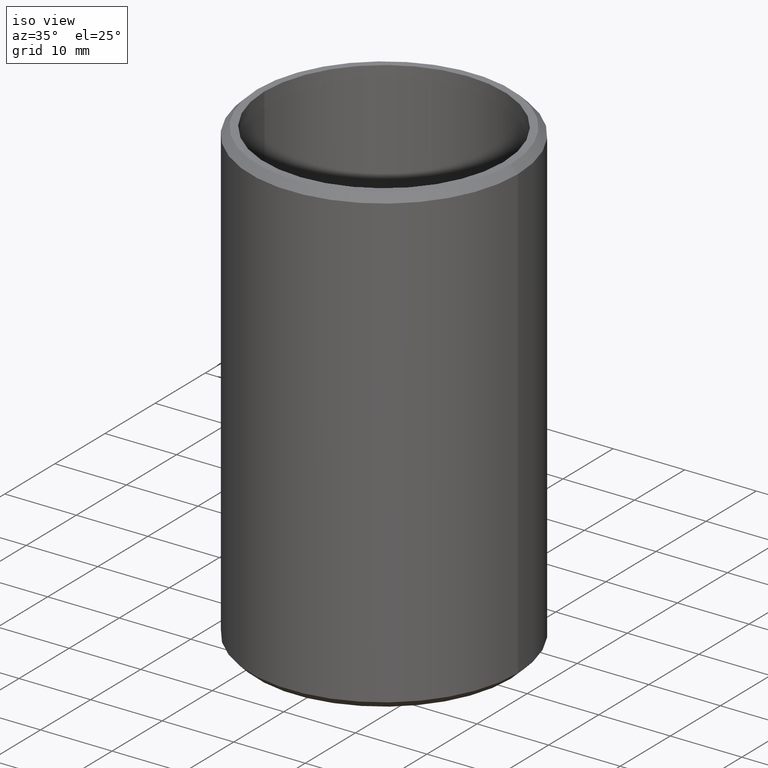
[diagram: clean part render]
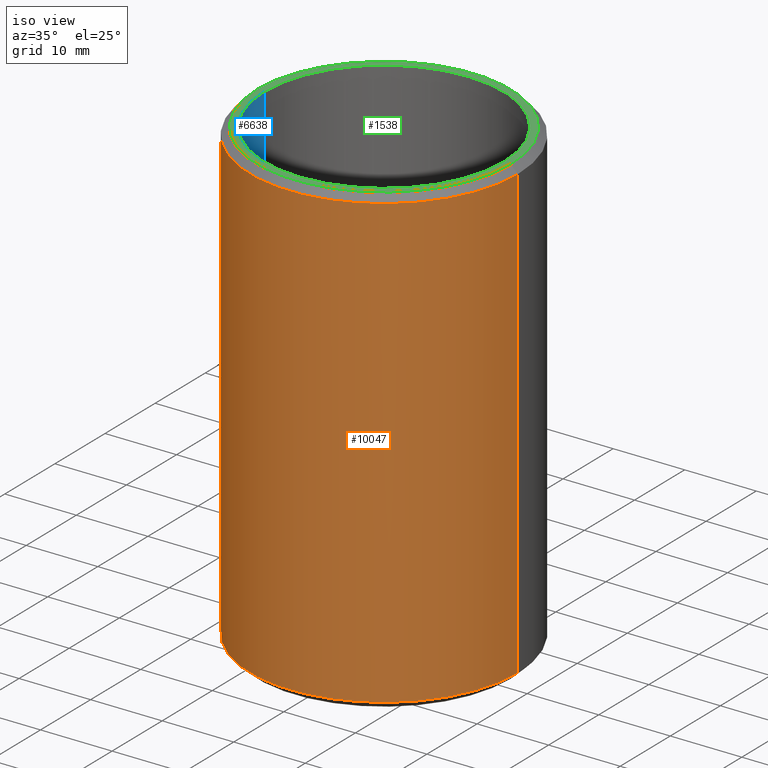
[diagram: same view with three faces highlighted in distinct colors, each labeled with its STEP entity id]
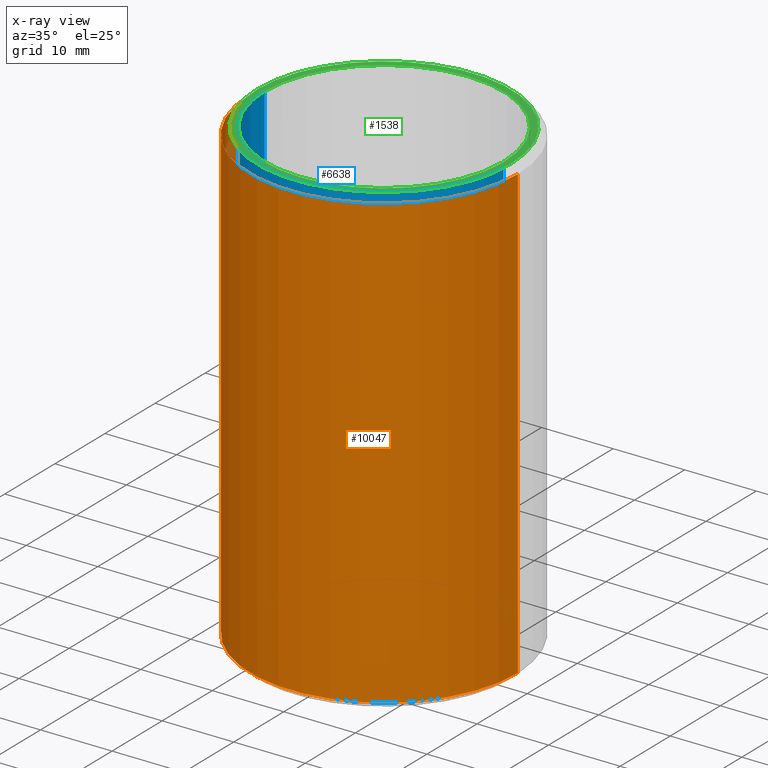
[diagram: x-ray of the same camera — body ghosted, the three highlighted faces saturated]
A machine part, iso view with three faces highlighted in distinct colors.
The next image is the same camera in x-ray (body ghosted, the three faces saturated) — at least one of them is partly hidden behind the body in this view.
Their STEP definitions:

[orange] entity #10047 — the highlighted cylindrical surface (partial cylindrical patch) has radius 18.7 mm, axis along (-0, -0, -1).
#18 = VERTEX_POINT ( 'NONE', #12883 ) ;
#245 = DIRECTION ( 'NONE',  ( 0.0000000000000000000, 0.0000000000000000000, -1.000000000000000000 ) ) ;
#316 = CARTESIAN_POINT ( 'NONE',  ( 0.0000000000000000000, 0.0000000000000000000, -31.49999999999998600 ) ) ;
#332 = DIRECTION ( 'NONE',  ( -1.000000000000000000, 0.0000000000000000000, 0.0000000000000000000 ) ) ;
#602 = FACE_OUTER_BOUND ( 'NONE', #7610, .T. ) ;
#1141 = VERTEX_POINT ( 'NONE', #10345 ) ;
#1582 = ORIENTED_EDGE ( 'NONE', *, *, #10571, .T. ) ;
#2938 = VECTOR ( 'NONE', #5825, 1000.000000000000000 ) ;
#3451 = VECTOR ( 'NONE', #11188, 1000.000000000000000 ) ;
#3551 = ORIENTED_EDGE ( 'NONE', *, *, #10774, .T. ) ;
#4277 = DIRECTION ( 'NONE',  ( -0.0000000000000000000, -0.0000000000000000000, -1.000000000000000000 ) ) ;
#4887 = CIRCLE ( 'NONE', #10219, 18.69999999999999900 ) ;
#5273 = CARTESIAN_POINT ( 'NONE',  ( 0.0000000000000000000, 0.0000000000000000000, 32.50000000000000000 ) ) ;
#5306 = EDGE_CURVE ( 'NONE', #12591, #1141, #5693, .T. ) ;
#5693 = CIRCLE ( 'NONE', #6255, 18.69999999999999900 ) ;
#5825 = DIRECTION ( 'NONE',  ( -0.0000000000000000000, -0.0000000000000000000, -1.000000000000000000 ) ) ;
#6255 = AXIS2_PLACEMENT_3D ( 'NONE', #12336, #245, #7360 ) ;
#6359 = LINE ( 'NONE', #8120, #3451 ) ;
#7311 = AXIS2_PLACEMENT_3D ( 'NONE', #5273, #4277, #332 ) ;
#7360 = DIRECTION ( 'NONE',  ( 1.000000000000000000, 0.0000000000000000000, 0.0000000000000000000 ) ) ;
#7418 = DIRECTION ( 'NONE',  ( 1.000000000000000000, 0.0000000000000000000, 0.0000000000000000000 ) ) ;
#7515 = DIRECTION ( 'NONE',  ( -0.0000000000000000000, -0.0000000000000000000, 1.000000000000000000 ) ) ;
#7610 = EDGE_LOOP ( 'NONE', ( #11947, #11634, #3551, #1582 ) ) ;
#8120 = CARTESIAN_POINT ( 'NONE',  ( 18.69999999999999900, 2.290089514405550500E-015, 32.50000000000000000 ) ) ;
#8992 = LINE ( 'NONE', #12800, #2938 ) ;
#9474 = CYLINDRICAL_SURFACE ( 'NONE', #7311, 18.69999999999999900 ) ;
#9706 = EDGE_CURVE ( 'NONE', #12591, #10919, #6359, .T. ) ;
#10047 = ADVANCED_FACE ( 'NONE', ( #602 ), #9474, .T. ) ;
#10219 = AXIS2_PLACEMENT_3D ( 'NONE', #316, #7515, #7418 ) ;
#10345 = CARTESIAN_POINT ( 'NONE',  ( -18.69999999999999900, 0.0000000000000000000, 31.50000000000000700 ) ) ;
#10372 = CARTESIAN_POINT ( 'NONE',  ( 18.69999999999999900, 2.290089514405550500E-015, -31.49999999999998600 ) ) ;
#10571 = EDGE_CURVE ( 'NONE', #18, #10919, #4887, .T. ) ;
#10774 = EDGE_CURVE ( 'NONE', #1141, #18, #8992, .T. ) ;
#10919 = VERTEX_POINT ( 'NONE', #10372 ) ;
#11188 = DIRECTION ( 'NONE',  ( -0.0000000000000000000, -0.0000000000000000000, -1.000000000000000000 ) ) ;
#11634 = ORIENTED_EDGE ( 'NONE', *, *, #5306, .T. ) ;
#11947 = ORIENTED_EDGE ( 'NONE', *, *, #9706, .F. ) ;
#12210 = CARTESIAN_POINT ( 'NONE',  ( 18.69999999999999900, 2.290089514405550500E-015, 31.50000000000000700 ) ) ;
#12336 = CARTESIAN_POINT ( 'NONE',  ( 0.0000000000000000000, 0.0000000000000000000, 31.50000000000000700 ) ) ;
#12591 = VERTEX_POINT ( 'NONE', #12210 ) ;
#12800 = CARTESIAN_POINT ( 'NONE',  ( -18.69999999999999900, 0.0000000000000000000, 32.50000000000000000 ) ) ;
#12883 = CARTESIAN_POINT ( 'NONE',  ( -18.69999999999999900, 0.0000000000000000000, -31.49999999999998600 ) ) ;

[blue] entity #6638 — the highlighted cylindrical surface (partial cylindrical patch) has radius 16.7 mm, axis along (-0, -0, -1).
#41 = B_SPLINE_CURVE_WITH_KNOTS ( 'NONE', 3,
 ( #10165, #9215, #11312, #3126 ),
 .UNSPECIFIED., .F., .F.,
 ( 4, 4 ),
 ( 0.0000000000000000000, 0.0001645194101132995600 ),
 .UNSPECIFIED. ) ;
#67 = DIRECTION ( 'NONE',  ( -0.0000000000000000000, -0.0000000000000000000, -1.000000000000000000 ) ) ;
#92 = ORIENTED_EDGE ( 'NONE', *, *, #7108, .F. ) ;
#96 = EDGE_CURVE ( 'NONE', #5989, #12878, #4911, .T. ) ;
#118 = VERTEX_POINT ( 'NONE', #9037 ) ;
#126 = VECTOR ( 'NONE', #8437, 1000.000000000000000 ) ;
#134 = B_SPLINE_CURVE_WITH_KNOTS ( 'NONE', 3,
 ( #10264, #10487, #5448, #4458 ),
 .UNSPECIFIED., .F., .F.,
 ( 4, 4 ),
 ( 0.0003122497290092668100, 0.0004517219821183796000 ),
 .UNSPECIFIED. ) ;
#250 = CARTESIAN_POINT ( 'NONE',  ( -16.69999238338286300, -0.01597987844934647300, 8.886734882556011100 ) ) ;
#292 = VERTEX_POINT ( 'NONE', #6363 ) ;
#294 = CARTESIAN_POINT ( 'NONE',  ( -16.69999999999999900, -1.551054894538230000E-016, 32.50000000000000000 ) ) ;
#318 = ORIENTED_EDGE ( 'NONE', *, *, #8656, .T. ) ;
#346 = EDGE_CURVE ( 'NONE', #118, #5563, #705, .T. ) ;
#359 = EDGE_CURVE ( 'NONE', #4543, #5696, #11160, .T. ) ;
#387 = EDGE_CURVE ( 'NONE', #11180, #8723, #7563, .T. ) ;
#430 = VERTEX_POINT ( 'NONE', #3484 ) ;
#474 = DIRECTION ( 'NONE',  ( -0.0000000000000000000, -0.0000000000000000000, -1.000000000000000000 ) ) ;
#512 = CARTESIAN_POINT ( 'NONE',  ( -16.69996672781217800, -0.03334105922174647500, 0.4567360529736959100 ) ) ;
#513 = VERTEX_POINT ( 'NONE', #8976 ) ;
#586 = VECTOR ( 'NONE', #3918, 1000.000000000000000 ) ;
#590 = LINE ( 'NONE', #7069, #11488 ) ;
#615 = B_SPLINE_CURVE_WITH_KNOTS ( 'NONE', 3,
 ( #12320, #12401, #6328, #7343 ),
 .UNSPECIFIED., .F., .F.,
 ( 4, 4 ),
 ( 0.0000000000000000000, 0.0001354148056496920800 ),
 .UNSPECIFIED. ) ;
#632 = CARTESIAN_POINT ( 'NONE',  ( -16.69999999999999900, -1.551054894538230000E-016, 6.572182158119662900 ) ) ;
#671 = CARTESIAN_POINT ( 'NONE',  ( -16.69999138749641800, -0.01696047008547024000, 8.935252654246800900 ) ) ;
#675 = ORIENTED_EDGE ( 'NONE', *, *, #3011, .F. ) ;
#693 = AXIS2_PLACEMENT_3D ( 'NONE', #12922, #1822, #12302 ) ;
#705 = LINE ( 'NONE', #9336, #5013 ) ;
#714 = LINE ( 'NONE', #11291, #7731 ) ;
#721 = VECTOR ( 'NONE', #3183, 1000.000000000000000 ) ;
#737 = LINE ( 'NONE', #9992, #586 ) ;
#756 = ORIENTED_EDGE ( 'NONE', *, *, #10816, .F. ) ;
#757 = CARTESIAN_POINT ( 'NONE',  ( -16.69999999999999900, -1.551054894538230000E-016, 3.994190705128205700 ) ) ;
#773 = VERTEX_POINT ( 'NONE', #5765 ) ;
#776 = VERTEX_POINT ( 'NONE', #7800 ) ;
#819 = DIRECTION ( 'NONE',  ( -0.0000000000000000000, -0.0000000000000000000, -1.000000000000000000 ) ) ;
#830 = CARTESIAN_POINT ( 'NONE',  ( -16.69999999999999900, -1.551054894538230000E-016, 1.755408653846157700 ) ) ;
#839 = CARTESIAN_POINT ( 'NONE',  ( -16.69999999999999200, -5.251720740006909600E-013, 0.6883463607472526400 ) ) ;
#841 = CARTESIAN_POINT ( 'NONE',  ( -16.69996554995901800, -0.03392094017094033500, -9.859068259214742700 ) ) ;
#868 = EDGE_LOOP ( 'NONE', ( #318, #4979, #92, #6316, #6533, #6392, #5740, #3635, #1493, #4551, #6024, #12827, #2689, #675, #9488, #8232, #6206, #10031, #3536, #5041, #2857, #12301, #756, #8917, #8153, #6561, #4185, #4205, #8773, #11227, #6688, #11162, #12661, #8004, #3615, #12808, #5134, #10126, #10147, #10246, #12358, #3521, #8428, #11213, #8945, #1210, #7061, #10735, #942, #5543, #4272, #3722, #2583, #8832, #12991, #3927, #11189, #2766, #8421, #8739 ) ) ;
#899 = CARTESIAN_POINT ( 'NONE',  ( -16.70000000000000600, -4.715580648130460100E-014, 7.219195855034024100 ) ) ;
#942 = ORIENTED_EDGE ( 'NONE', *, *, #8340, .T. ) ;
#950 = CARTESIAN_POINT ( 'NONE',  ( -16.69999999999999900, -1.551054894538230000E-016, -1.501001602564098400 ) ) ;
#983 = CARTESIAN_POINT ( 'NONE',  ( -16.69999249357679400, -0.01587137687383451800, 7.310394557709775800 ) ) ;
#985 = CARTESIAN_POINT ( 'NONE',  ( -16.69999999999999900, -1.551054894538230000E-016, 5.910723824786329800 ) ) ;
#1007 = DIRECTION ( 'NONE',  ( 0.0000000000000000000, 0.0000000000000000000, 1.000000000000000000 ) ) ;
#1101 = CARTESIAN_POINT ( 'NONE',  ( -16.69999999999999900, 0.0000000000000000000, 32.50000000000000000 ) ) ;
#1111 = DIRECTION ( 'NONE',  ( -0.0000000000000000000, -0.0000000000000000000, -1.000000000000000000 ) ) ;
#1210 = ORIENTED_EDGE ( 'NONE', *, *, #8390, .F. ) ;
#1212 = LINE ( 'NONE', #2143, #126 ) ;
#1222 = LINE ( 'NONE', #10789, #8395 ) ;
#1270 = CARTESIAN_POINT ( 'NONE',  ( -16.69999999999999900, 0.0000000000000000000, 32.50000000000000000 ) ) ;
#1288 = CARTESIAN_POINT ( 'NONE',  ( -16.69999999999999900, -1.551054894538230000E-016, 32.50000000000000000 ) ) ;
#1295 = EDGE_CURVE ( 'NONE', #12831, #6544, #11367, .T. ) ;
#1332 = VERTEX_POINT ( 'NONE', #9682 ) ;
#1360 = VECTOR ( 'NONE', #11431, 1000.000000000000000 ) ;
#1363 = LINE ( 'NONE', #7245, #6497 ) ;
#1369 = DIRECTION ( 'NONE',  ( 0.0000000000000000000, 0.0000000000000000000, 1.000000000000000000 ) ) ;
#1385 = DIRECTION ( 'NONE',  ( 0.0000000000000000000, 0.0000000000000000000, 1.000000000000000000 ) ) ;
#1392 = LINE ( 'NONE', #12510, #12935 ) ;
#1398 = VERTEX_POINT ( 'NONE', #5768 ) ;
#1440 = EDGE_CURVE ( 'NONE', #2749, #10013, #2504, .T. ) ;
#1489 = DIRECTION ( 'NONE',  ( -0.0000000000000000000, -0.0000000000000000000, -1.000000000000000000 ) ) ;
#1490 = EDGE_CURVE ( 'NONE', #4121, #10705, #12885, .T. ) ;
#1493 = ORIENTED_EDGE ( 'NONE', *, *, #346, .F. ) ;
#1532 = EDGE_CURVE ( 'NONE', #7859, #8769, #6971, .T. ) ;
#1546 = CARTESIAN_POINT ( 'NONE',  ( -16.70000000000000600, -6.748332666598692200E-013, -7.074379740093164100 ) ) ;
#1555 = LINE ( 'NONE', #9325, #11710 ) ;
#1558 = EDGE_CURVE ( 'NONE', #1852, #2134, #12758, .T. ) ;
#1559 = VERTEX_POINT ( 'NONE', #5900 ) ;
#1560 = VERTEX_POINT ( 'NONE', #12027 ) ;
#1632 = DIRECTION ( 'NONE',  ( 0.0000000000000000000, 0.0000000000000000000, 1.000000000000000000 ) ) ;
#1671 = CARTESIAN_POINT ( 'NONE',  ( -16.69996554995901800, -0.03392094017094032800, -7.234965528178420000 ) ) ;
#1673 = VECTOR ( 'NONE', #2622, 1000.000000000000000 ) ;
#1675 = CARTESIAN_POINT ( 'NONE',  ( -16.69999999999999900, 0.0000000000000000000, 32.50000000000000000 ) ) ;
#1692 = CARTESIAN_POINT ( 'NONE',  ( -16.69999999999999900, -1.551054894538230000E-016, 3.604099893162394400 ) ) ;
#1700 = LINE ( 'NONE', #7397, #9332 ) ;
#1715 = LINE ( 'NONE', #1288, #11079 ) ;
#1782 = DIRECTION ( 'NONE',  ( -0.0000000000000000000, -0.0000000000000000000, -1.000000000000000000 ) ) ;
#1806 = VECTOR ( 'NONE', #1385, 1000.000000000000000 ) ;
#1822 = DIRECTION ( 'NONE',  ( -0.0000000000000000000, -0.0000000000000000000, -1.000000000000000000 ) ) ;
#1834 = CARTESIAN_POINT ( 'NONE',  ( -16.69999999999999900, 0.0000000000000000000, 32.50000000000000000 ) ) ;
#1852 = VERTEX_POINT ( 'NONE', #11478 ) ;
#1983 = CARTESIAN_POINT ( 'NONE',  ( -16.69999999999999900, -1.551054894538230000E-016, 32.50000000000000000 ) ) ;
#1994 = CARTESIAN_POINT ( 'NONE',  ( -16.69999999999999900, 0.0000000000000000000, 32.50000000000000000 ) ) ;
#2015 = DIRECTION ( 'NONE',  ( 1.000000000000000000, 0.0000000000000000000, 0.0000000000000000000 ) ) ;
#2041 = DIRECTION ( 'NONE',  ( 0.0000000000000000000, 0.0000000000000000000, 1.000000000000000000 ) ) ;
#2134 = VERTEX_POINT ( 'NONE', #10618 ) ;
#2143 = CARTESIAN_POINT ( 'NONE',  ( -16.69999999999999900, 0.0000000000000000000, 32.50000000000000000 ) ) ;
#2200 = CARTESIAN_POINT ( 'NONE',  ( -16.70000000000000600, -6.748332666598692200E-013, -7.074379740093164100 ) ) ;
#2226 = CARTESIAN_POINT ( 'NONE',  ( -16.69999999999999900, 0.0000000000000000000, 32.50000000000000000 ) ) ;
#2236 = EDGE_CURVE ( 'NONE', #8953, #3402, #11544, .T. ) ;
#2277 = VECTOR ( 'NONE', #4487, 1000.000000000000000 ) ;
#2315 = CARTESIAN_POINT ( 'NONE',  ( -16.69996719821758200, -0.03310946911146010800, -0.5743638114719853400 ) ) ;
#2323 = VECTOR ( 'NONE', #1111, 1000.000000000000000 ) ;
#2345 = VERTEX_POINT ( 'NONE', #10719 ) ;
#2347 = CARTESIAN_POINT ( 'NONE',  ( -16.69999999999999900, -1.551054894538230000E-016, 8.098624465811967700 ) ) ;
#2466 = VERTEX_POINT ( 'NONE', #632 ) ;
#2478 = AXIS2_PLACEMENT_3D ( 'NONE', #11978, #1007, #2015 ) ;
#2497 = LINE ( 'NONE', #1101, #13098 ) ;
#2504 = LINE ( 'NONE', #1675, #6028 ) ;
#2520 = EDGE_CURVE ( 'NONE', #1559, #6508, #4584, .T. ) ;
#2537 = LINE ( 'NONE', #7802, #12173 ) ;
#2572 = CARTESIAN_POINT ( 'NONE',  ( 16.69999999999999900, 2.045160154576079800E-015, 32.50000000000000000 ) ) ;
#2583 = ORIENTED_EDGE ( 'NONE', *, *, #1440, .F. ) ;
#2611 = EDGE_CURVE ( 'NONE', #12147, #11204, #1222, .T. ) ;
#2622 = DIRECTION ( 'NONE',  ( -0.0000000000000000000, -0.0000000000000000000, -1.000000000000000000 ) ) ;
#2633 = EDGE_CURVE ( 'NONE', #12147, #4121, #12560, .T. ) ;
#2647 = DIRECTION ( 'NONE',  ( 0.0000000000000000000, 0.0000000000000000000, 1.000000000000000000 ) ) ;
#2663 = CARTESIAN_POINT ( 'NONE',  ( -16.69999999999999900, -1.551054894538230000E-016, -8.420873397435892500 ) ) ;
#2680 = EDGE_CURVE ( 'NONE', #5840, #1332, #5707, .T. ) ;
#2689 = ORIENTED_EDGE ( 'NONE', *, *, #6040, .T. ) ;
#2747 = CARTESIAN_POINT ( 'NONE',  ( -16.69999252396562600, -0.01584145475486908900, 8.983188331401498400 ) ) ;
#2749 = VERTEX_POINT ( 'NONE', #2347 ) ;
#2766 = ORIENTED_EDGE ( 'NONE', *, *, #3409, .F. ) ;
#2857 = ORIENTED_EDGE ( 'NONE', *, *, #9733, .F. ) ;
#2871 = CARTESIAN_POINT ( 'NONE',  ( -16.69999999999999900, -1.551054894538230000E-016, -3.875467414529910800 ) ) ;
#2901 = CARTESIAN_POINT ( 'NONE',  ( -16.69999999999999900, -1.551054894538230000E-016, 2.484708867521372900 ) ) ;
#2943 = LINE ( 'NONE', #1270, #4247 ) ;
#2972 = CARTESIAN_POINT ( 'NONE',  ( -16.69999999999999200, -6.752912997260969800E-013, -2.393289996503417800 ) ) ;
#3011 = EDGE_CURVE ( 'NONE', #3712, #8786, #1212, .T. ) ;
#3016 = EDGE_CURVE ( 'NONE', #2749, #430, #12605, .T. ) ;
#3084 = LINE ( 'NONE', #8521, #1806 ) ;
#3096 = CARTESIAN_POINT ( 'NONE',  ( -16.69999999999999900, -1.551054894538230000E-016, 32.50000000000000000 ) ) ;
#3126 = CARTESIAN_POINT ( 'NONE',  ( -16.69999999999999200, -6.752912997260969800E-013, -2.393289996503417800 ) ) ;
#3183 = DIRECTION ( 'NONE',  ( 0.0000000000000000000, 0.0000000000000000000, 1.000000000000000000 ) ) ;
#3201 = VERTEX_POINT ( 'NONE', #4741 ) ;
#3290 = VERTEX_POINT ( 'NONE', #5141 ) ;
#3324 = LINE ( 'NONE', #12080, #7799 ) ;
#3344 = CARTESIAN_POINT ( 'NONE',  ( -16.69999999999999900, -1.551054894538230000E-016, 10.23564369658119800 ) ) ;
#3350 = VERTEX_POINT ( 'NONE', #830 ) ;
#3402 = VERTEX_POINT ( 'NONE', #2901 ) ;
#3409 = EDGE_CURVE ( 'NONE', #6137, #3290, #2943, .T. ) ;
#3454 = EDGE_CURVE ( 'NONE', #1560, #8769, #8997, .T. ) ;
#3468 = CARTESIAN_POINT ( 'NONE',  ( 16.69999999999999900, 2.045160154576079800E-015, -32.50000000000000000 ) ) ;
#3484 = CARTESIAN_POINT ( 'NONE',  ( -16.69999999999999900, -1.551054894538230000E-016, 8.217347756410257300 ) ) ;
#3521 = ORIENTED_EDGE ( 'NONE', *, *, #10485, .F. ) ;
#3536 = ORIENTED_EDGE ( 'NONE', *, *, #12418, .T. ) ;
#3555 = CARTESIAN_POINT ( 'NONE',  ( -16.69999999999999900, -5.433716356636336700E-016, -7.396388602553878800 ) ) ;
#3615 = ORIENTED_EDGE ( 'NONE', *, *, #11872, .F. ) ;
#3635 = ORIENTED_EDGE ( 'NONE', *, *, #4564, .T. ) ;
#3650 = EDGE_CURVE ( 'NONE', #3712, #5696, #10867, .T. ) ;
#3696 = B_SPLINE_CURVE_WITH_KNOTS ( 'NONE', 3,
 ( #5130, #12199, #8400, #5260 ),
 .UNSPECIFIED., .F., .F.,
 ( 4, 4 ),
 ( 0.0000000000000000000, 0.0001645194101132999400 ),
 .UNSPECIFIED. ) ;
#3711 = CARTESIAN_POINT ( 'NONE',  ( -16.69999999999999900, -0.02342405405019061900, -9.986808934908646400 ) ) ;
#3712 = VERTEX_POINT ( 'NONE', #4122 ) ;
#3722 = ORIENTED_EDGE ( 'NONE', *, *, #5780, .T. ) ;
#3760 = VECTOR ( 'NONE', #9381, 1000.000000000000000 ) ;
#3790 = VERTEX_POINT ( 'NONE', #12663 ) ;
#3794 = CARTESIAN_POINT ( 'NONE',  ( -16.69996554995901800, -0.03392094017094032800, -2.553875784588672400 ) ) ;
#3829 = DIRECTION ( 'NONE',  ( 0.0000000000000000000, 0.0000000000000000000, 1.000000000000000000 ) ) ;
#3833 = CARTESIAN_POINT ( 'NONE',  ( -16.70000000000000600, 5.572377238288641700E-012, 4.523516103639996000 ) ) ;
#3834 = CARTESIAN_POINT ( 'NONE',  ( -16.69996787043194800, -0.03277852437029723400, 0.5784097059820391100 ) ) ;
#3903 = CARTESIAN_POINT ( 'NONE',  ( -16.69999999999999900, 0.0000000000000000000, -32.50000000000000000 ) ) ;
#3918 = DIRECTION ( 'NONE',  ( -0.0000000000000000000, -0.0000000000000000000, -1.000000000000000000 ) ) ;
#3919 = CARTESIAN_POINT ( 'NONE',  ( -16.69999999999999200, -0.02343688019447004100, 0.6360032582614759700 ) ) ;
#3927 = ORIENTED_EDGE ( 'NONE', *, *, #2520, .T. ) ;
#3929 = B_SPLINE_CURVE_WITH_KNOTS ( 'NONE', 3,
 ( #7442, #8594, #512, #7658 ),
 .UNSPECIFIED., .F., .F.,
 ( 4, 4 ),
 ( 0.0005409006475431795300, 0.0007297867420576336100 ),
 .UNSPECIFIED. ) ;
#3931 = EDGE_CURVE ( 'NONE', #1559, #430, #8203, .T. ) ;
#3947 = CARTESIAN_POINT ( 'NONE',  ( -16.69999999999999900, -0.02343688019447230700, -9.743804434046222000 ) ) ;
#3950 = EDGE_CURVE ( 'NONE', #1852, #7158, #5408, .T. ) ;
#4121 = VERTEX_POINT ( 'NONE', #7275 ) ;
#4122 = CARTESIAN_POINT ( 'NONE',  ( -16.69999999999999900, -1.551054894538230000E-016, -5.656316773504269000 ) ) ;
#4160 = DIRECTION ( 'NONE',  ( -0.0000000000000000000, -0.0000000000000000000, -1.000000000000000000 ) ) ;
#4185 = ORIENTED_EDGE ( 'NONE', *, *, #11440, .T. ) ;
#4205 = ORIENTED_EDGE ( 'NONE', *, *, #96, .T. ) ;
#4209 = EDGE_CURVE ( 'NONE', #118, #11067, #7356, .T. ) ;
#4247 = VECTOR ( 'NONE', #7432, 1000.000000000000000 ) ;
#4272 = ORIENTED_EDGE ( 'NONE', *, *, #3950, .T. ) ;
#4292 = EDGE_CURVE ( 'NONE', #11060, #9166, #9471, .T. ) ;
#4306 = CARTESIAN_POINT ( 'NONE',  ( -16.69999999999999900, -1.551054894538230000E-016, -1.619724893162387300 ) ) ;
#4341 = CARTESIAN_POINT ( 'NONE',  ( -16.70000000000000600, 5.572377238288641700E-012, 4.523516103639996000 ) ) ;
#4352 = VERTEX_POINT ( 'NONE', #8836 ) ;
#4366 = EDGE_CURVE ( 'NONE', #11067, #8723, #4933, .T. ) ;
#4383 = DIRECTION ( 'NONE',  ( 1.000000000000000000, 0.0000000000000000000, 0.0000000000000000000 ) ) ;
#4384 = CARTESIAN_POINT ( 'NONE',  ( -16.69999999999999200, -1.057833904488579900E-013, 8.791911933995812900 ) ) ;
#4399 = LINE ( 'NONE', #10351, #721 ) ;
#4434 = VECTOR ( 'NONE', #474, 1000.000000000000000 ) ;
#4458 = CARTESIAN_POINT ( 'NONE',  ( -16.69999138749641800, -0.01696047008547024000, 4.389051649305556200 ) ) ;
#4476 = LINE ( 'NONE', #10930, #11575 ) ;
#4487 = DIRECTION ( 'NONE',  ( -0.0000000000000000000, -0.0000000000000000000, -1.000000000000000000 ) ) ;
#4543 = VERTEX_POINT ( 'NONE', #2871 ) ;
#4551 = ORIENTED_EDGE ( 'NONE', *, *, #4209, .T. ) ;
#4564 = EDGE_CURVE ( 'NONE', #773, #5563, #4399, .T. ) ;
#4584 = B_SPLINE_CURVE_WITH_KNOTS ( 'NONE', 3,
 ( #4384, #8374, #250, #10241 ),
 .UNSPECIFIED., .F., .F.,
 ( 4, 4 ),
 ( 0.0004003679278568019100, 0.0005426838302378741900 ),
 .UNSPECIFIED. ) ;
#4669 = EDGE_CURVE ( 'NONE', #8048, #8156, #41, .T. ) ;
#4741 = CARTESIAN_POINT ( 'NONE',  ( -16.69999999999999900, -1.551054894538230000E-016, -3.756744123931618200 ) ) ;
#4784 = CARTESIAN_POINT ( 'NONE',  ( -16.70000000000001000, -0.02309534509019173600, -7.124177465865152200 ) ) ;
#4786 = DIRECTION ( 'NONE',  ( 0.0000000000000000000, 0.0000000000000000000, 1.000000000000000000 ) ) ;
#4800 = CARTESIAN_POINT ( 'NONE',  ( -16.69999999999999900, -1.551054894538230000E-016, 2.756076388888889300 ) ) ;
#4813 = CARTESIAN_POINT ( 'NONE',  ( -16.69999999999999900, -1.551054894538230000E-016, 32.50000000000000000 ) ) ;
#4832 = DIRECTION ( 'NONE',  ( -0.0000000000000000000, -0.0000000000000000000, -1.000000000000000000 ) ) ;
#4904 = VECTOR ( 'NONE', #4951, 1000.000000000000000 ) ;
#4911 = B_SPLINE_CURVE_WITH_KNOTS ( 'NONE', 3,
 ( #9897, #3834, #3919, #11917 ),
 .UNSPECIFIED., .F., .F.,
 ( 4, 4 ),
 ( 0.0000000000000000000, 0.0001713056973771774000 ),
 .UNSPECIFIED. ) ;
#4933 = B_SPLINE_CURVE_WITH_KNOTS ( 'NONE', 3,
 ( #1671, #10796, #4784, #1546 ),
 .UNSPECIFIED., .F., .F.,
 ( 4, 4 ),
 ( 0.0000000000000000000, 0.0001645194101133013000 ),
 .UNSPECIFIED. ) ;
#4951 = DIRECTION ( 'NONE',  ( -0.0000000000000000000, -0.0000000000000000000, -1.000000000000000000 ) ) ;
#4979 = ORIENTED_EDGE ( 'NONE', *, *, #11494, .T. ) ;
#5000 = CARTESIAN_POINT ( 'NONE',  ( -16.69999999999999900, -1.551054894538230000E-016, -6.521300747863244300 ) ) ;
#5013 = VECTOR ( 'NONE', #7372, 1000.000000000000000 ) ;
#5041 = ORIENTED_EDGE ( 'NONE', *, *, #4669, .T. ) ;
#5050 = VECTOR ( 'NONE', #4832, 1000.000000000000000 ) ;
#5056 = LINE ( 'NONE', #9268, #2323 ) ;
#5130 = CARTESIAN_POINT ( 'NONE',  ( -16.69996554995901800, -0.03392094017094032800, -0.5186193743322594600 ) ) ;
#5134 = ORIENTED_EDGE ( 'NONE', *, *, #9276, .F. ) ;
#5141 = CARTESIAN_POINT ( 'NONE',  ( -16.70000000000000600, 7.972442870872215200E-012, 9.076508891035006200 ) ) ;
#5149 = CARTESIAN_POINT ( 'NONE',  ( -16.70000000000000600, -0.01155977179730610300, 7.264091732317709200 ) ) ;
#5187 = VECTOR ( 'NONE', #5612, 1000.000000000000000 ) ;
#5228 = CARTESIAN_POINT ( 'NONE',  ( -16.70000000000000600, 5.591375128504371600E-012, 7.491598368597335500 ) ) ;
#5252 = LINE ( 'NONE', #9714, #12303 ) ;
#5254 = EDGE_CURVE ( 'NONE', #773, #10705, #5863, .T. ) ;
#5260 = CARTESIAN_POINT ( 'NONE',  ( -16.69999999999999200, -6.751686917069819200E-013, -0.3580335862470044300 ) ) ;
#5327 = CARTESIAN_POINT ( 'NONE',  ( -16.69999999999999900, -0.02204698990980418600, -0.6298294780424919000 ) ) ;
#5365 = DIRECTION ( 'NONE',  ( -0.0000000000000000000, -0.0000000000000000000, -1.000000000000000000 ) ) ;
#5380 = VERTEX_POINT ( 'NONE', #3468 ) ;
#5384 = VECTOR ( 'NONE', #2647, 1000.000000000000000 ) ;
#5388 = VECTOR ( 'NONE', #12694, 1000.000000000000000 ) ;
#5391 = CARTESIAN_POINT ( 'NONE',  ( -16.69999999999999900, -1.551054894538230000E-016, -4.757411858974357700 ) ) ;
#5408 = B_SPLINE_CURVE_WITH_KNOTS ( 'NONE', 3,
 ( #899, #5149, #983, #6044 ),
 .UNSPECIFIED., .F., .F.,
 ( 4, 4 ),
 ( 0.0003122497290092663800, 0.0004517219821183796000 ),
 .UNSPECIFIED. ) ;
#5448 = CARTESIAN_POINT ( 'NONE',  ( -16.69999249357679400, -0.01587137687383447000, 4.342312292752509100 ) ) ;
#5457 = EDGE_CURVE ( 'NONE', #1560, #6970, #8814, .T. ) ;
#5543 = ORIENTED_EDGE ( 'NONE', *, *, #1558, .F. ) ;
#5563 = VERTEX_POINT ( 'NONE', #2663 ) ;
#5564 = VECTOR ( 'NONE', #6859, 1000.000000000000000 ) ;
#5597 = EDGE_CURVE ( 'NONE', #12461, #3350, #590, .T. ) ;
#5612 = DIRECTION ( 'NONE',  ( -0.0000000000000000000, -0.0000000000000000000, -1.000000000000000000 ) ) ;
#5682 = CARTESIAN_POINT ( 'NONE',  ( -16.69999999999999900, 0.0000000000000000000, 32.50000000000000000 ) ) ;
#5696 = VERTEX_POINT ( 'NONE', #5391 ) ;
#5707 = LINE ( 'NONE', #10767, #5388 ) ;
#5740 = ORIENTED_EDGE ( 'NONE', *, *, #5254, .F. ) ;
#5765 = CARTESIAN_POINT ( 'NONE',  ( -16.69999999999999900, -1.551054894538230000E-016, -9.319778311965807300 ) ) ;
#5768 = CARTESIAN_POINT ( 'NONE',  ( -16.69999999999999900, -1.551054894538230000E-016, 6.843549679487182400 ) ) ;
#5780 = EDGE_CURVE ( 'NONE', #7158, #10013, #615, .T. ) ;
#5833 = VERTEX_POINT ( 'NONE', #4341 ) ;
#5840 = VERTEX_POINT ( 'NONE', #11352 ) ;
#5863 = LINE ( 'NONE', #10406, #1360 ) ;
#5894 = VECTOR ( 'NONE', #3829, 1000.000000000000000 ) ;
#5900 = CARTESIAN_POINT ( 'NONE',  ( -16.69999999999999200, -1.057833904488579900E-013, 8.791911933995812900 ) ) ;
#5926 = DIRECTION ( 'NONE',  ( -0.0000000000000000000, -0.0000000000000000000, -1.000000000000000000 ) ) ;
#5946 = CARTESIAN_POINT ( 'NONE',  ( -16.69999999999999200, -1.691948312140464900E-016, -2.715298858964131100 ) ) ;
#5960 = CARTESIAN_POINT ( 'NONE',  ( -16.69999999999999900, 0.0000000000000000000, 32.50000000000000000 ) ) ;
#5989 = VERTEX_POINT ( 'NONE', #12860 ) ;
#6024 = ORIENTED_EDGE ( 'NONE', *, *, #4366, .T. ) ;
#6028 = VECTOR ( 'NONE', #8793, 1000.000000000000000 ) ;
#6040 = EDGE_CURVE ( 'NONE', #11180, #8786, #4476, .T. ) ;
#6044 = CARTESIAN_POINT ( 'NONE',  ( -16.69999138749641800, -0.01696047008547024000, 7.357133914262822900 ) ) ;
#6072 = CARTESIAN_POINT ( 'NONE',  ( -16.69999999999999900, 0.0000000000000000000, 32.50000000000000000 ) ) ;
#6076 = VERTEX_POINT ( 'NONE', #11113 ) ;
#6137 = VERTEX_POINT ( 'NONE', #10223 ) ;
#6158 = VECTOR ( 'NONE', #1489, 1000.000000000000000 ) ;
#6206 = ORIENTED_EDGE ( 'NONE', *, *, #7348, .T. ) ;
#6219 = EDGE_CURVE ( 'NONE', #8953, #513, #12026, .T. ) ;
#6316 = ORIENTED_EDGE ( 'NONE', *, *, #2611, .F. ) ;
#6328 = CARTESIAN_POINT ( 'NONE',  ( -16.69999999999999600, -0.01147758817040505000, 7.447756744016635900 ) ) ;
#6363 = CARTESIAN_POINT ( 'NONE',  ( -16.69999999999999200, -1.691948312140464900E-016, -2.715298858964131100 ) ) ;
#6392 = ORIENTED_EDGE ( 'NONE', *, *, #1490, .T. ) ;
#6400 = DIRECTION ( 'NONE',  ( 0.0000000000000000000, 0.0000000000000000000, 1.000000000000000000 ) ) ;
#6401 = FACE_OUTER_BOUND ( 'NONE', #868, .T. ) ;
#6440 = CARTESIAN_POINT ( 'NONE',  ( -16.69996554995901800, -0.03392094017094032800, -7.234965528178420000 ) ) ;
#6441 = CARTESIAN_POINT ( 'NONE',  ( -16.69999138749641800, -0.01696047008547024000, 7.357133914262822900 ) ) ;
#6497 = VECTOR ( 'NONE', #4160, 1000.000000000000000 ) ;
#6508 = VERTEX_POINT ( 'NONE', #11633 ) ;
#6533 = ORIENTED_EDGE ( 'NONE', *, *, #2633, .T. ) ;
#6544 = VERTEX_POINT ( 'NONE', #1692 ) ;
#6551 = CARTESIAN_POINT ( 'NONE',  ( -16.69999999999999900, -1.264143734217839900E-015, -10.04594337375250700 ) ) ;
#6561 = ORIENTED_EDGE ( 'NONE', *, *, #2680, .F. ) ;
#6586 = B_SPLINE_CURVE_WITH_KNOTS ( 'NONE', 3,
 ( #5946, #11023, #13010, #9930 ),
 .UNSPECIFIED., .F., .F.,
 ( 4, 4 ),
 ( 0.0007601544001610000100, 0.0009231642194032370900 ),
 .UNSPECIFIED. ) ;
#6626 = EDGE_CURVE ( 'NONE', #2345, #7307, #10917, .T. ) ;
#6638 = ADVANCED_FACE ( 'NONE', ( #6401 ), #11870, .F. ) ;
#6688 = ORIENTED_EDGE ( 'NONE', *, *, #5597, .F. ) ;
#6744 = CARTESIAN_POINT ( 'NONE',  ( -16.69999999999999900, 0.0000000000000000000, 32.50000000000000000 ) ) ;
#6806 = CARTESIAN_POINT ( 'NONE',  ( -16.69996672781216400, -0.03334105922174635700, -9.923071639334001000 ) ) ;
#6859 = DIRECTION ( 'NONE',  ( 0.0000000000000000000, 0.0000000000000000000, 1.000000000000000000 ) ) ;
#6919 = CARTESIAN_POINT ( 'NONE',  ( -16.69999138749641800, -0.01696047008547024000, 4.389051649305556200 ) ) ;
#6925 = EDGE_CURVE ( 'NONE', #6076, #2466, #3324, .T. ) ;
#6970 = VERTEX_POINT ( 'NONE', #985 ) ;
#6971 = LINE ( 'NONE', #11862, #5564 ) ;
#7061 = ORIENTED_EDGE ( 'NONE', *, *, #6925, .T. ) ;
#7069 = CARTESIAN_POINT ( 'NONE',  ( -16.69999999999999900, 0.0000000000000000000, 32.50000000000000000 ) ) ;
#7086 = EDGE_CURVE ( 'NONE', #3790, #3350, #1715, .T. ) ;
#7108 = EDGE_CURVE ( 'NONE', #11204, #5380, #12478, .T. ) ;
#7119 = CARTESIAN_POINT ( 'NONE',  ( -16.69999999999999900, -1.551054894538230000E-016, 3.485376602564104400 ) ) ;
#7158 = VERTEX_POINT ( 'NONE', #6441 ) ;
#7191 = CARTESIAN_POINT ( 'NONE',  ( -16.69999999999999900, -1.551054894538230000E-016, 32.50000000000000000 ) ) ;
#7217 = DIRECTION ( 'NONE',  ( 0.0000000000000000000, 0.0000000000000000000, 1.000000000000000000 ) ) ;
#7245 = CARTESIAN_POINT ( 'NONE',  ( -16.69999999999999900, 0.0000000000000000000, 32.50000000000000000 ) ) ;
#7248 = VECTOR ( 'NONE', #9024, 1000.000000000000000 ) ;
#7275 = CARTESIAN_POINT ( 'NONE',  ( -16.69996554995901800, -0.03392094017094033500, -9.859068259214742700 ) ) ;
#7307 = VERTEX_POINT ( 'NONE', #757 ) ;
#7343 = CARTESIAN_POINT ( 'NONE',  ( -16.70000000000000600, 5.591375128504371600E-012, 7.491598368597335500 ) ) ;
#7345 = CARTESIAN_POINT ( 'NONE',  ( -16.69999999999999900, -1.551054894538230000E-016, 5.249265491452996800 ) ) ;
#7348 = EDGE_CURVE ( 'NONE', #4543, #3201, #2537, .T. ) ;
#7356 = B_SPLINE_CURVE_WITH_KNOTS ( 'NONE', 3,
 ( #3555, #10463, #11436, #6440 ),
 .UNSPECIFIED., .F., .F.,
 ( 4, 4 ),
 ( 0.0007601544001609853800, 0.0009231642194032100900 ),
 .UNSPECIFIED. ) ;
#7372 = DIRECTION ( 'NONE',  ( -0.0000000000000000000, -0.0000000000000000000, -1.000000000000000000 ) ) ;
#7397 = CARTESIAN_POINT ( 'NONE',  ( -16.69999999999999900, -1.551054894538230000E-016, 32.50000000000000000 ) ) ;
#7432 = DIRECTION ( 'NONE',  ( -0.0000000000000000000, -0.0000000000000000000, -1.000000000000000000 ) ) ;
#7442 = CARTESIAN_POINT ( 'NONE',  ( -16.69999999999999900, -6.230986118239446900E-017, 0.3338643185551853900 ) ) ;
#7563 = LINE ( 'NONE', #9377, #2277 ) ;
#7658 = CARTESIAN_POINT ( 'NONE',  ( -16.69996554995901800, -0.03392094017094032800, 0.5207394330929565600 ) ) ;
#7690 = CARTESIAN_POINT ( 'NONE',  ( -16.69999999999999900, -1.551054894538230000E-016, 32.50000000000000000 ) ) ;
#7731 = VECTOR ( 'NONE', #67, 1000.000000000000000 ) ;
#7787 = CARTESIAN_POINT ( 'NONE',  ( -16.69999999999999900, -1.264143734217839900E-015, -10.04594337375250700 ) ) ;
#7799 = VECTOR ( 'NONE', #8280, 1000.000000000000000 ) ;
#7800 = CARTESIAN_POINT ( 'NONE',  ( -16.69999999999999200, -3.875175733688423600E-016, -0.6800424487077176800 ) ) ;
#7802 = CARTESIAN_POINT ( 'NONE',  ( -16.69999999999999900, -1.551054894538230000E-016, 32.50000000000000000 ) ) ;
#7824 = VERTEX_POINT ( 'NONE', #4306 ) ;
#7830 = DIRECTION ( 'NONE',  ( 0.0000000000000000000, 0.0000000000000000000, 1.000000000000000000 ) ) ;
#7851 = CARTESIAN_POINT ( 'NONE',  ( -16.69999999999999900, -5.255252867396960000E-013, -9.691461331560443400 ) ) ;
#7859 = VERTEX_POINT ( 'NONE', #10609 ) ;
#7896 = CARTESIAN_POINT ( 'NONE',  ( -16.69999264393184600, -0.01572333097818935000, 4.434616151608539200 ) ) ;
#7984 = EDGE_CURVE ( 'NONE', #12461, #3402, #12007, .T. ) ;
#8004 = ORIENTED_EDGE ( 'NONE', *, *, #6219, .T. ) ;
#8028 = DIRECTION ( 'NONE',  ( -0.0000000000000000000, -0.0000000000000000000, -1.000000000000000000 ) ) ;
#8048 = VERTEX_POINT ( 'NONE', #3794 ) ;
#8153 = ORIENTED_EDGE ( 'NONE', *, *, #8700, .T. ) ;
#8156 = VERTEX_POINT ( 'NONE', #2972 ) ;
#8162 = VERTEX_POINT ( 'NONE', #11951 ) ;
#8203 = LINE ( 'NONE', #10852, #5050 ) ;
#8219 = VECTOR ( 'NONE', #2041, 1000.000000000000000 ) ;
#8229 = EDGE_CURVE ( 'NONE', #1398, #2466, #1555, .T. ) ;
#8232 = ORIENTED_EDGE ( 'NONE', *, *, #359, .F. ) ;
#8242 = CARTESIAN_POINT ( 'NONE',  ( -16.69999999999999200, -3.875175733688423600E-016, -0.6800424487077176800 ) ) ;
#8280 = DIRECTION ( 'NONE',  ( 0.0000000000000000000, 0.0000000000000000000, 1.000000000000000000 ) ) ;
#8325 = EDGE_CURVE ( 'NONE', #7824, #9078, #1700, .T. ) ;
#8340 = EDGE_CURVE ( 'NONE', #1398, #2134, #9507, .T. ) ;
#8372 = DIRECTION ( 'NONE',  ( 0.0000000000000000000, 0.0000000000000000000, 1.000000000000000000 ) ) ;
#8374 = CARTESIAN_POINT ( 'NONE',  ( -16.69999999999999900, -0.01203960247758885900, 8.838566068531365600 ) ) ;
#8390 = EDGE_CURVE ( 'NONE', #6076, #6970, #1392, .T. ) ;
#8395 = VECTOR ( 'NONE', #5926, 1000.000000000000000 ) ;
#8400 = CARTESIAN_POINT ( 'NONE',  ( -16.70000000000001000, -0.02309534509019175300, -0.4078313120189922000 ) ) ;
#8421 = ORIENTED_EDGE ( 'NONE', *, *, #12115, .T. ) ;
#8428 = ORIENTED_EDGE ( 'NONE', *, *, #1532, .T. ) ;
#8437 = DIRECTION ( 'NONE',  ( -0.0000000000000000000, -0.0000000000000000000, -1.000000000000000000 ) ) ;
#8521 = CARTESIAN_POINT ( 'NONE',  ( -16.69999999999999900, -1.551054894538230000E-016, 32.50000000000000000 ) ) ;
#8549 = CARTESIAN_POINT ( 'NONE',  ( -16.69999999999999900, 0.0000000000000000000, 32.50000000000000000 ) ) ;
#8594 = CARTESIAN_POINT ( 'NONE',  ( -16.69999999999999900, -0.02342405405018395000, 0.3929987573990532700 ) ) ;
#8595 = EDGE_CURVE ( 'NONE', #6508, #3290, #12680, .T. ) ;
#8616 = CARTESIAN_POINT ( 'NONE',  ( -16.69999999999999600, -0.01147758817041036800, 4.479674479059319500 ) ) ;
#8656 = EDGE_CURVE ( 'NONE', #11060, #12250, #8870, .T. ) ;
#8700 = EDGE_CURVE ( 'NONE', #4352, #1332, #3696, .T. ) ;
#8723 = VERTEX_POINT ( 'NONE', #2200 ) ;
#8739 = ORIENTED_EDGE ( 'NONE', *, *, #4292, .F. ) ;
#8769 = VERTEX_POINT ( 'NONE', #7345 ) ;
#8773 = ORIENTED_EDGE ( 'NONE', *, *, #12556, .F. ) ;
#8782 = EDGE_CURVE ( 'NONE', #2345, #9362, #134, .T. ) ;
#8786 = VERTEX_POINT ( 'NONE', #12452 ) ;
#8793 = DIRECTION ( 'NONE',  ( -0.0000000000000000000, -0.0000000000000000000, -1.000000000000000000 ) ) ;
#8814 = LINE ( 'NONE', #4813, #11000 ) ;
#8832 = ORIENTED_EDGE ( 'NONE', *, *, #3016, .T. ) ;
#8836 = CARTESIAN_POINT ( 'NONE',  ( -16.69996554995901800, -0.03392094017094032800, -0.5186193743322594600 ) ) ;
#8870 = CIRCLE ( 'NONE', #2478, 16.69999999999999900 ) ;
#8890 = CARTESIAN_POINT ( 'NONE',  ( -16.69999999999999900, -5.255252867396960000E-013, -9.691461331560443400 ) ) ;
#8917 = ORIENTED_EDGE ( 'NONE', *, *, #9148, .T. ) ;
#8945 = ORIENTED_EDGE ( 'NONE', *, *, #5457, .T. ) ;
#8953 = VERTEX_POINT ( 'NONE', #4800 ) ;
#8976 = CARTESIAN_POINT ( 'NONE',  ( -16.69999999999999900, -1.551054894538230000E-016, 2.874799679487181500 ) ) ;
#8997 = LINE ( 'NONE', #1834, #11679 ) ;
#9024 = DIRECTION ( 'NONE',  ( 0.0000000000000000000, 0.0000000000000000000, 1.000000000000000000 ) ) ;
#9037 = CARTESIAN_POINT ( 'NONE',  ( -16.69999999999999900, -5.433716356636336700E-016, -7.396388602553878800 ) ) ;
#9078 = VERTEX_POINT ( 'NONE', #950 ) ;
#9148 = EDGE_CURVE ( 'NONE', #776, #4352, #10752, .T. ) ;
#9166 = VERTEX_POINT ( 'NONE', #3344 ) ;
#9180 = CARTESIAN_POINT ( 'NONE',  ( -16.70000000000000600, 7.972442870872215200E-012, 9.076508891035006200 ) ) ;
#9215 = CARTESIAN_POINT ( 'NONE',  ( -16.69996745311371500, -0.03298397858652280700, -2.498415954779620300 ) ) ;
#9220 = DIRECTION ( 'NONE',  ( -0.0000000000000000000, -0.0000000000000000000, -1.000000000000000000 ) ) ;
#9268 = CARTESIAN_POINT ( 'NONE',  ( -16.69999999999999900, 0.0000000000000000000, 32.50000000000000000 ) ) ;
#9276 = EDGE_CURVE ( 'NONE', #8162, #6544, #12142, .T. ) ;
#9280 = DIRECTION ( 'NONE',  ( 0.0000000000000000000, 0.0000000000000000000, 1.000000000000000000 ) ) ;
#9325 = CARTESIAN_POINT ( 'NONE',  ( -16.69999999999999900, 0.0000000000000000000, 32.50000000000000000 ) ) ;
#9332 = VECTOR ( 'NONE', #6400, 1000.000000000000000 ) ;
#9336 = CARTESIAN_POINT ( 'NONE',  ( -16.69999999999999900, 0.0000000000000000000, 32.50000000000000000 ) ) ;
#9362 = VERTEX_POINT ( 'NONE', #9668 ) ;
#9377 = CARTESIAN_POINT ( 'NONE',  ( -16.69999999999999900, 0.0000000000000000000, 32.50000000000000000 ) ) ;
#9381 = DIRECTION ( 'NONE',  ( 0.0000000000000000000, 0.0000000000000000000, 1.000000000000000000 ) ) ;
#9471 = LINE ( 'NONE', #6744, #1673 ) ;
#9488 = ORIENTED_EDGE ( 'NONE', *, *, #3650, .T. ) ;
#9507 = LINE ( 'NONE', #294, #11697 ) ;
#9668 = CARTESIAN_POINT ( 'NONE',  ( -16.69999138749641800, -0.01696047008547024000, 4.389051649305556200 ) ) ;
#9682 = CARTESIAN_POINT ( 'NONE',  ( -16.69999999999999200, -6.751686917069819200E-013, -0.3580335862470044300 ) ) ;
#9714 = CARTESIAN_POINT ( 'NONE',  ( -16.69999999999999900, 0.0000000000000000000, 32.50000000000000000 ) ) ;
#9733 = EDGE_CURVE ( 'NONE', #7824, #8156, #2497, .T. ) ;
#9897 = CARTESIAN_POINT ( 'NONE',  ( -16.69996554995901800, -0.03392094017094032800, 0.5207394330929565600 ) ) ;
#9930 = CARTESIAN_POINT ( 'NONE',  ( -16.69996554995901800, -0.03392094017094032800, -2.553875784588672400 ) ) ;
#9946 = AXIS2_PLACEMENT_3D ( 'NONE', #10323, #9280, #4383 ) ;
#9987 = EDGE_CURVE ( 'NONE', #292, #3201, #5056, .T. ) ;
#9992 = CARTESIAN_POINT ( 'NONE',  ( -16.69999999999999900, 0.0000000000000000000, 32.50000000000000000 ) ) ;
#10013 = VERTEX_POINT ( 'NONE', #5228 ) ;
#10031 = ORIENTED_EDGE ( 'NONE', *, *, #9987, .F. ) ;
#10107 = CARTESIAN_POINT ( 'NONE',  ( -16.69999999999999900, -1.551054894538230000E-016, 2.365985576923079800 ) ) ;
#10126 = ORIENTED_EDGE ( 'NONE', *, *, #12395, .T. ) ;
#10147 = ORIENTED_EDGE ( 'NONE', *, *, #6626, .F. ) ;
#10165 = CARTESIAN_POINT ( 'NONE',  ( -16.69996554995901800, -0.03392094017094032800, -2.553875784588672400 ) ) ;
#10172 = CARTESIAN_POINT ( 'NONE',  ( -16.69999999999999900, -0.01193490576680696800, 9.030601314842137100 ) ) ;
#10223 = CARTESIAN_POINT ( 'NONE',  ( -16.69999999999999900, -1.551054894538230000E-016, 10.11692040598290800 ) ) ;
#10241 = CARTESIAN_POINT ( 'NONE',  ( -16.69999138749641800, -0.01696047008547024000, 8.935252654246800900 ) ) ;
#10246 = ORIENTED_EDGE ( 'NONE', *, *, #8782, .T. ) ;
#10264 = CARTESIAN_POINT ( 'NONE',  ( -16.69999999999999900, -4.703086912158458600E-014, 4.251113590076757400 ) ) ;
#10323 = CARTESIAN_POINT ( 'NONE',  ( 0.0000000000000000000, 0.0000000000000000000, -32.50000000000000000 ) ) ;
#10351 = CARTESIAN_POINT ( 'NONE',  ( -16.69999999999999900, -1.551054894538230000E-016, 32.50000000000000000 ) ) ;
#10406 = CARTESIAN_POINT ( 'NONE',  ( -16.69999999999999900, 0.0000000000000000000, 32.50000000000000000 ) ) ;
#10432 = CARTESIAN_POINT ( 'NONE',  ( -16.69999999999999900, -1.551054894538230000E-016, 32.50000000000000000 ) ) ;
#10461 = VECTOR ( 'NONE', #7217, 1000.000000000000000 ) ;
#10463 = CARTESIAN_POINT ( 'NONE',  ( -16.70000000000000600, -0.02204698990980406500, -7.346175631888652200 ) ) ;
#10468 = CARTESIAN_POINT ( 'NONE',  ( -16.69996554995901800, -0.03392094017094032800, -0.5186193743322594600 ) ) ;
#10485 = EDGE_CURVE ( 'NONE', #7859, #5833, #1363, .T. ) ;
#10487 = CARTESIAN_POINT ( 'NONE',  ( -16.69999999999999900, -0.01155977179730604100, 4.296009467360439900 ) ) ;
#10593 = DIRECTION ( 'NONE',  ( -0.0000000000000000000, -0.0000000000000000000, -1.000000000000000000 ) ) ;
#10609 = CARTESIAN_POINT ( 'NONE',  ( -16.69999999999999900, -1.551054894538230000E-016, 5.130542200854706400 ) ) ;
#10618 = CARTESIAN_POINT ( 'NONE',  ( -16.69999999999999900, -1.551054894538230000E-016, 6.962272970085472000 ) ) ;
#10674 = EDGE_CURVE ( 'NONE', #9362, #5833, #12511, .T. ) ;
#10705 = VERTEX_POINT ( 'NONE', #7851 ) ;
#10719 = CARTESIAN_POINT ( 'NONE',  ( -16.69999999999999900, -4.703086912158458600E-014, 4.251113590076757400 ) ) ;
#10735 = ORIENTED_EDGE ( 'NONE', *, *, #8229, .F. ) ;
#10752 = B_SPLINE_CURVE_WITH_KNOTS ( 'NONE', 3,
 ( #8242, #5327, #2315, #10468 ),
 .UNSPECIFIED., .F., .F.,
 ( 4, 4 ),
 ( 0.0007601544001609872200, 0.0009231642194032207200 ),
 .UNSPECIFIED. ) ;
#10767 = CARTESIAN_POINT ( 'NONE',  ( -16.69999999999999900, 0.0000000000000000000, 32.50000000000000000 ) ) ;
#10776 = VECTOR ( 'NONE', #819, 1000.000000000000000 ) ;
#10789 = CARTESIAN_POINT ( 'NONE',  ( -16.69999999999999900, 0.0000000000000000000, 32.50000000000000000 ) ) ;
#10796 = CARTESIAN_POINT ( 'NONE',  ( -16.69996745311371500, -0.03298397858652273000, -7.179505698369367500 ) ) ;
#10816 = EDGE_CURVE ( 'NONE', #776, #9078, #737, .T. ) ;
#10852 = CARTESIAN_POINT ( 'NONE',  ( -16.69999999999999900, 0.0000000000000000000, 32.50000000000000000 ) ) ;
#10867 = LINE ( 'NONE', #7191, #8219 ) ;
#10898 = CARTESIAN_POINT ( 'NONE',  ( -16.69999999999999900, -1.551054894538230000E-016, 32.50000000000000000 ) ) ;
#10917 = LINE ( 'NONE', #1994, #10776 ) ;
#10930 = CARTESIAN_POINT ( 'NONE',  ( -16.69999999999999900, -1.551054894538230000E-016, 32.50000000000000000 ) ) ;
#11000 = VECTOR ( 'NONE', #7830, 1000.000000000000000 ) ;
#11004 = DIRECTION ( 'NONE',  ( -0.0000000000000000000, -0.0000000000000000000, -1.000000000000000000 ) ) ;
#11023 = CARTESIAN_POINT ( 'NONE',  ( -16.69999999999999900, -0.02204698990980357900, -2.665085888298905500 ) ) ;
#11060 = VERTEX_POINT ( 'NONE', #5682 ) ;
#11067 = VERTEX_POINT ( 'NONE', #11664 ) ;
#11079 = VECTOR ( 'NONE', #8372, 1000.000000000000000 ) ;
#11113 = CARTESIAN_POINT ( 'NONE',  ( -16.69999999999999900, -1.551054894538230000E-016, 6.453458867521373300 ) ) ;
#11160 = LINE ( 'NONE', #2226, #5187 ) ;
#11162 = ORIENTED_EDGE ( 'NONE', *, *, #7984, .T. ) ;
#11180 = VERTEX_POINT ( 'NONE', #5000 ) ;
#11189 = ORIENTED_EDGE ( 'NONE', *, *, #8595, .T. ) ;
#11204 = VERTEX_POINT ( 'NONE', #3903 ) ;
#11213 = ORIENTED_EDGE ( 'NONE', *, *, #3454, .F. ) ;
#11227 = ORIENTED_EDGE ( 'NONE', *, *, #7086, .T. ) ;
#11291 = CARTESIAN_POINT ( 'NONE',  ( -16.69999999999999900, 0.0000000000000000000, 32.50000000000000000 ) ) ;
#11296 = DIRECTION ( 'NONE',  ( -0.0000000000000000000, -0.0000000000000000000, -1.000000000000000000 ) ) ;
#11312 = CARTESIAN_POINT ( 'NONE',  ( -16.70000000000000600, -0.02309534509019135400, -2.443087722275405500 ) ) ;
#11352 = CARTESIAN_POINT ( 'NONE',  ( -16.69999999999999900, -6.230986118239446900E-017, 0.3338643185551853900 ) ) ;
#11367 = LINE ( 'NONE', #7690, #5384 ) ;
#11431 = DIRECTION ( 'NONE',  ( -0.0000000000000000000, -0.0000000000000000000, -1.000000000000000000 ) ) ;
#11436 = CARTESIAN_POINT ( 'NONE',  ( -16.69996719821758200, -0.03310946911146021200, -7.290709965318145100 ) ) ;
#11440 = EDGE_CURVE ( 'NONE', #5840, #5989, #3929, .T. ) ;
#11478 = CARTESIAN_POINT ( 'NONE',  ( -16.70000000000000600, -4.715580648130460100E-014, 7.219195855034024100 ) ) ;
#11488 = VECTOR ( 'NONE', #11004, 1000.000000000000000 ) ;
#11494 = EDGE_CURVE ( 'NONE', #12250, #5380, #12582, .T. ) ;
#11544 = LINE ( 'NONE', #5960, #12775 ) ;
#11575 = VECTOR ( 'NONE', #4786, 1000.000000000000000 ) ;
#11633 = CARTESIAN_POINT ( 'NONE',  ( -16.69999138749641800, -0.01696047008547024000, 8.935252654246800900 ) ) ;
#11664 = CARTESIAN_POINT ( 'NONE',  ( -16.69996554995901800, -0.03392094017094032800, -7.234965528178420000 ) ) ;
#11679 = VECTOR ( 'NONE', #8028, 1000.000000000000000 ) ;
#11697 = VECTOR ( 'NONE', #1369, 1000.000000000000000 ) ;
#11710 = VECTOR ( 'NONE', #11296, 1000.000000000000000 ) ;
#11848 = CARTESIAN_POINT ( 'NONE',  ( -16.69996554995901800, -0.03392094017094033500, -9.859068259214742700 ) ) ;
#11862 = CARTESIAN_POINT ( 'NONE',  ( -16.69999999999999900, -1.551054894538230000E-016, 32.50000000000000000 ) ) ;
#11870 = CYLINDRICAL_SURFACE ( 'NONE', #693, 16.69999999999999900 ) ;
#11872 = EDGE_CURVE ( 'NONE', #12831, #513, #5252, .T. ) ;
#11917 = CARTESIAN_POINT ( 'NONE',  ( -16.69999999999999200, -5.251720740006909600E-013, 0.6883463607472526400 ) ) ;
#11951 = CARTESIAN_POINT ( 'NONE',  ( -16.69999999999999900, -1.551054894538230000E-016, 3.875467414529914400 ) ) ;
#11978 = CARTESIAN_POINT ( 'NONE',  ( 0.0000000000000000000, 0.0000000000000000000, 32.50000000000000000 ) ) ;
#12007 = LINE ( 'NONE', #10898, #5894 ) ;
#12026 = LINE ( 'NONE', #3096, #10461 ) ;
#12027 = CARTESIAN_POINT ( 'NONE',  ( -16.69999999999999900, -1.551054894538230000E-016, 5.792000534188039400 ) ) ;
#12080 = CARTESIAN_POINT ( 'NONE',  ( -16.69999999999999900, -1.551054894538230000E-016, 32.50000000000000000 ) ) ;
#12115 = EDGE_CURVE ( 'NONE', #6137, #9166, #3084, .T. ) ;
#12142 = LINE ( 'NONE', #8549, #4434 ) ;
#12147 = VERTEX_POINT ( 'NONE', #6551 ) ;
#12173 = VECTOR ( 'NONE', #1632, 1000.000000000000000 ) ;
#12199 = CARTESIAN_POINT ( 'NONE',  ( -16.69996745311371500, -0.03298397858652281400, -0.4631595445232073400 ) ) ;
#12250 = VERTEX_POINT ( 'NONE', #12567 ) ;
#12301 = ORIENTED_EDGE ( 'NONE', *, *, #8325, .T. ) ;
#12302 = DIRECTION ( 'NONE',  ( -1.000000000000000000, 0.0000000000000000000, 0.0000000000000000000 ) ) ;
#12303 = VECTOR ( 'NONE', #10593, 1000.000000000000000 ) ;
#12320 = CARTESIAN_POINT ( 'NONE',  ( -16.69999138749641800, -0.01696047008547024000, 7.357133914262822900 ) ) ;
#12358 = ORIENTED_EDGE ( 'NONE', *, *, #10674, .T. ) ;
#12395 = EDGE_CURVE ( 'NONE', #8162, #7307, #12884, .T. ) ;
#12401 = CARTESIAN_POINT ( 'NONE',  ( -16.69999264393184600, -0.01572333097818864900, 7.402698416565830700 ) ) ;
#12418 = EDGE_CURVE ( 'NONE', #292, #8048, #6586, .T. ) ;
#12452 = CARTESIAN_POINT ( 'NONE',  ( -16.69999999999999900, -1.551054894538230000E-016, -6.402577457264955600 ) ) ;
#12461 = VERTEX_POINT ( 'NONE', #10107 ) ;
#12478 = CIRCLE ( 'NONE', #9946, 16.69999999999999900 ) ;
#12510 = CARTESIAN_POINT ( 'NONE',  ( -16.69999999999999900, 0.0000000000000000000, 32.50000000000000000 ) ) ;
#12511 = B_SPLINE_CURVE_WITH_KNOTS ( 'NONE', 3,
 ( #6919, #7896, #8616, #3833 ),
 .UNSPECIFIED., .F., .F.,
 ( 4, 4 ),
 ( 0.0000000000000000000, 0.0001354148056496163700 ),
 .UNSPECIFIED. ) ;
#12556 = EDGE_CURVE ( 'NONE', #3790, #12878, #714, .T. ) ;
#12560 = B_SPLINE_CURVE_WITH_KNOTS ( 'NONE', 3,
 ( #7787, #3711, #6806, #11848 ),
 .UNSPECIFIED., .F., .F.,
 ( 4, 4 ),
 ( 0.0005409006475432140100, 0.0007297867420576703700 ),
 .UNSPECIFIED. ) ;
#12567 = CARTESIAN_POINT ( 'NONE',  ( 16.69999999999999900, 2.045160154576079800E-015, 32.50000000000000000 ) ) ;
#12582 = LINE ( 'NONE', #2572, #6158 ) ;
#12605 = LINE ( 'NONE', #10432, #3760 ) ;
#12661 = ORIENTED_EDGE ( 'NONE', *, *, #2236, .F. ) ;
#12663 = CARTESIAN_POINT ( 'NONE',  ( -16.69999999999999900, -1.551054894538230000E-016, 1.636685363247868200 ) ) ;
#12680 = B_SPLINE_CURVE_WITH_KNOTS ( 'NONE', 3,
 ( #671, #2747, #10172, #9180 ),
 .UNSPECIFIED., .F., .F.,
 ( 4, 4 ),
 ( 0.0000000000000000000, 0.0001419623447276699200 ),
 .UNSPECIFIED. ) ;
#12694 = DIRECTION ( 'NONE',  ( -0.0000000000000000000, -0.0000000000000000000, -1.000000000000000000 ) ) ;
#12758 = LINE ( 'NONE', #6072, #4904 ) ;
#12775 = VECTOR ( 'NONE', #1782, 1000.000000000000000 ) ;
#12808 = ORIENTED_EDGE ( 'NONE', *, *, #1295, .T. ) ;
#12827 = ORIENTED_EDGE ( 'NONE', *, *, #387, .F. ) ;
#12831 = VERTEX_POINT ( 'NONE', #7119 ) ;
#12860 = CARTESIAN_POINT ( 'NONE',  ( -16.69996554995901800, -0.03392094017094032800, 0.5207394330929565600 ) ) ;
#12878 = VERTEX_POINT ( 'NONE', #839 ) ;
#12884 = LINE ( 'NONE', #1983, #7248 ) ;
#12885 = B_SPLINE_CURVE_WITH_KNOTS ( 'NONE', 3,
 ( #841, #12906, #3947, #8890 ),
 .UNSPECIFIED., .F., .F.,
 ( 4, 4 ),
 ( 1.756830462118029100E-018, 0.0001713056973771770700 ),
 .UNSPECIFIED. ) ;
#12906 = CARTESIAN_POINT ( 'NONE',  ( -16.69996787043194800, -0.03277852437029733800, -9.801397986325659100 ) ) ;
#12922 = CARTESIAN_POINT ( 'NONE',  ( 0.0000000000000000000, 0.0000000000000000000, 32.50000000000000000 ) ) ;
#12935 = VECTOR ( 'NONE', #5365, 1000.000000000000000 ) ;
#12991 = ORIENTED_EDGE ( 'NONE', *, *, #3931, .F. ) ;
#13010 = CARTESIAN_POINT ( 'NONE',  ( -16.69996719821758200, -0.03310946911146004500, -2.609620221728398400 ) ) ;
#13098 = VECTOR ( 'NONE', #9220, 1000.000000000000000 ) ;

[green] entity #1538 — the highlighted planar face has unit normal (0, 0, 1).
#344 = EDGE_LOOP ( 'NONE', ( #6458, #8907 ) ) ;
#400 = EDGE_CURVE ( 'NONE', #11589, #2229, #2904, .T. ) ;
#906 = CIRCLE ( 'NONE', #1573, 17.70000000000000600 ) ;
#1007 = DIRECTION ( 'NONE',  ( 0.0000000000000000000, 0.0000000000000000000, 1.000000000000000000 ) ) ;
#1428 = EDGE_CURVE ( 'NONE', #2229, #11589, #906, .T. ) ;
#1538 = ADVANCED_FACE ( 'NONE', ( #11985, #2957 ), #1804, .T. ) ;
#1573 = AXIS2_PLACEMENT_3D ( 'NONE', #6778, #10673, #10836 ) ;
#1586 = EDGE_LOOP ( 'NONE', ( #6824, #9485 ) ) ;
#1804 = PLANE ( 'NONE',  #12945 ) ;
#1842 = CARTESIAN_POINT ( 'NONE',  ( 0.0000000000000000000, 0.0000000000000000000, 32.50000000000000000 ) ) ;
#2015 = DIRECTION ( 'NONE',  ( 1.000000000000000000, 0.0000000000000000000, 0.0000000000000000000 ) ) ;
#2229 = VERTEX_POINT ( 'NONE', #2855 ) ;
#2478 = AXIS2_PLACEMENT_3D ( 'NONE', #11978, #1007, #2015 ) ;
#2855 = CARTESIAN_POINT ( 'NONE',  ( 17.70000000000000600, 2.228857174448183300E-015, 32.50000000000000000 ) ) ;
#2869 = DIRECTION ( 'NONE',  ( 1.000000000000000000, 0.0000000000000000000, 0.0000000000000000000 ) ) ;
#2904 = CIRCLE ( 'NONE', #8328, 17.70000000000000600 ) ;
#2957 = FACE_BOUND ( 'NONE', #1586, .T. ) ;
#3154 = AXIS2_PLACEMENT_3D ( 'NONE', #1842, #5844, #2869 ) ;
#5081 = CIRCLE ( 'NONE', #3154, 16.69999999999999900 ) ;
#5682 = CARTESIAN_POINT ( 'NONE',  ( -16.69999999999999900, 0.0000000000000000000, 32.50000000000000000 ) ) ;
#5844 = DIRECTION ( 'NONE',  ( 0.0000000000000000000, 0.0000000000000000000, 1.000000000000000000 ) ) ;
#6458 = ORIENTED_EDGE ( 'NONE', *, *, #400, .T. ) ;
#6588 = CARTESIAN_POINT ( 'NONE',  ( 0.0000000000000000000, 0.0000000000000000000, 32.50000000000000000 ) ) ;
#6778 = CARTESIAN_POINT ( 'NONE',  ( 0.0000000000000000000, 0.0000000000000000000, 32.50000000000000000 ) ) ;
#6824 = ORIENTED_EDGE ( 'NONE', *, *, #8656, .F. ) ;
#7592 = DIRECTION ( 'NONE',  ( 1.000000000000000000, 0.0000000000000000000, 0.0000000000000000000 ) ) ;
#7914 = DIRECTION ( 'NONE',  ( 0.0000000000000000000, 0.0000000000000000000, 1.000000000000000000 ) ) ;
#8328 = AXIS2_PLACEMENT_3D ( 'NONE', #6588, #11624, #7592 ) ;
#8552 = EDGE_CURVE ( 'NONE', #12250, #11060, #5081, .T. ) ;
#8656 = EDGE_CURVE ( 'NONE', #11060, #12250, #8870, .T. ) ;
#8870 = CIRCLE ( 'NONE', #2478, 16.69999999999999900 ) ;
#8907 = ORIENTED_EDGE ( 'NONE', *, *, #1428, .T. ) ;
#9485 = ORIENTED_EDGE ( 'NONE', *, *, #8552, .F. ) ;
#10673 = DIRECTION ( 'NONE',  ( 0.0000000000000000000, 0.0000000000000000000, 1.000000000000000000 ) ) ;
#10836 = DIRECTION ( 'NONE',  ( 1.000000000000000000, 0.0000000000000000000, 0.0000000000000000000 ) ) ;
#11060 = VERTEX_POINT ( 'NONE', #5682 ) ;
#11589 = VERTEX_POINT ( 'NONE', #11694 ) ;
#11624 = DIRECTION ( 'NONE',  ( 0.0000000000000000000, 0.0000000000000000000, 1.000000000000000000 ) ) ;
#11694 = CARTESIAN_POINT ( 'NONE',  ( -17.70000000000000600, 0.0000000000000000000, 32.50000000000000000 ) ) ;
#11978 = CARTESIAN_POINT ( 'NONE',  ( 0.0000000000000000000, 0.0000000000000000000, 32.50000000000000000 ) ) ;
#11985 = FACE_OUTER_BOUND ( 'NONE', #344, .T. ) ;
#11986 = CARTESIAN_POINT ( 'NONE',  ( 0.0000000000000000000, 0.0000000000000000000, 32.50000000000000000 ) ) ;
#12250 = VERTEX_POINT ( 'NONE', #12567 ) ;
#12567 = CARTESIAN_POINT ( 'NONE',  ( 16.69999999999999900, 2.045160154576079800E-015, 32.50000000000000000 ) ) ;
#12945 = AXIS2_PLACEMENT_3D ( 'NONE', #11986, #7914, #12954 ) ;
#12954 = DIRECTION ( 'NONE',  ( 1.000000000000000000, 0.0000000000000000000, -0.0000000000000000000 ) ) ;